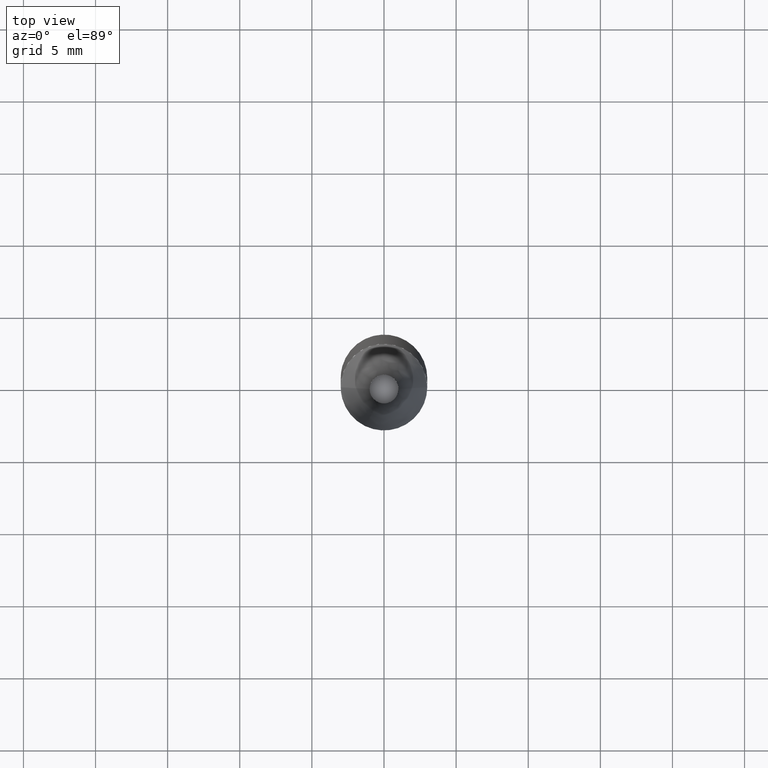
[diagram: clean part render]
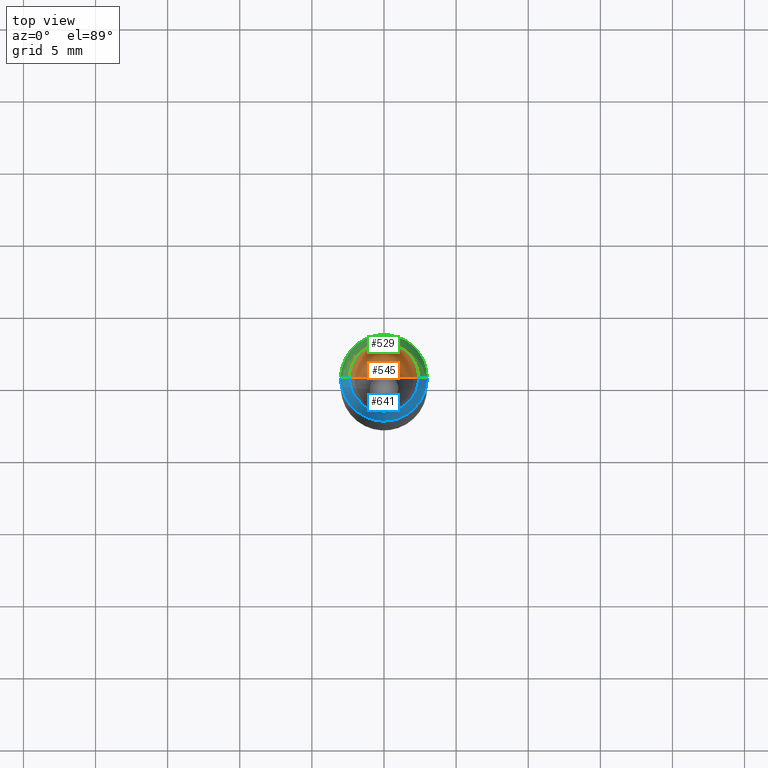
[diagram: same view with three faces highlighted in distinct colors, each labeled with its STEP entity id]
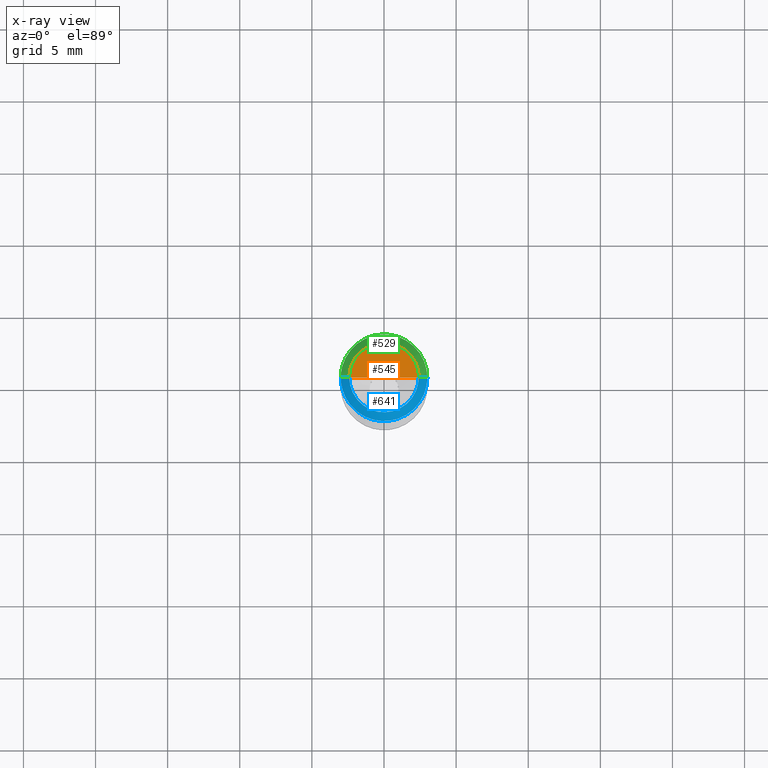
[diagram: x-ray of the same camera — body ghosted, the three highlighted faces saturated]
A machine part, top view with three faces highlighted in distinct colors.
The next image is the same camera in x-ray (body ghosted, the three faces saturated) — at least one of them is partly hidden behind the body in this view.
Their STEP definitions:

[orange] entity #545 — the highlighted face is a freeform B-spline surface patch.
#303=CARTESIAN_POINT('',(2.4,0.0,37.535));
#304=CARTESIAN_POINT('',(2.4,2.4,37.535));
#305=CARTESIAN_POINT('',(0.0,2.4,37.535));
#306=CARTESIAN_POINT('',(-2.4,2.4,37.535));
#307=CARTESIAN_POINT('',(-2.4,0.0,37.535));
#308=CARTESIAN_POINT('',(0.0,0.0,37.535));
#530=(
BOUNDED_SURFACE()
B_SPLINE_SURFACE(1,2,(
(#303,#304,#305,#306,#307),
(#308,#308,#308,#308,#308)
), .UNSPECIFIED.,.F.,.F.,.F.)
B_SPLINE_SURFACE_WITH_KNOTS((2,2),(3,2,3),(
0.0,1.0),(
0.0,0.5,1.0), .UNSPECIFIED.)
GEOMETRIC_REPRESENTATION_ITEM()
RATIONAL_B_SPLINE_SURFACE(((1.0,0.707106781187,1.0,0.707106781187,1.0),
(1.0,0.707106781187,1.0,0.707106781187,1.0)
))
REPRESENTATION_ITEM('')
SURFACE()
);
#531=(
BOUNDED_CURVE()
B_SPLINE_CURVE(1,(#308,#303),.UNSPECIFIED.,.F.,.F.)
B_SPLINE_CURVE_WITH_KNOTS((2,2),
(0.0,1.0),.UNSPECIFIED.)
CURVE()
GEOMETRIC_REPRESENTATION_ITEM()
RATIONAL_B_SPLINE_CURVE((1.0,1.0))
REPRESENTATION_ITEM('')
);
#532=(
BOUNDED_CURVE()
B_SPLINE_CURVE(2,(#303,#304,#305,#306,#307),.UNSPECIFIED.,.F.,.F.)
B_SPLINE_CURVE_WITH_KNOTS((3,2,3),
(0.0,0.5,1.0),.UNSPECIFIED.)
CURVE()
GEOMETRIC_REPRESENTATION_ITEM()
RATIONAL_B_SPLINE_CURVE((1.0,0.707106781187,1.0,0.707106781187,1.0))
REPRESENTATION_ITEM('')
);
#533=(
BOUNDED_CURVE()
B_SPLINE_CURVE(1,(#307,#308),.UNSPECIFIED.,.F.,.F.)
B_SPLINE_CURVE_WITH_KNOTS((2,2),
(0.0,1.0),.UNSPECIFIED.)
CURVE()
GEOMETRIC_REPRESENTATION_ITEM()
RATIONAL_B_SPLINE_CURVE((1.0,1.0))
REPRESENTATION_ITEM('')
);
#534=VERTEX_POINT('',#303);
#535=VERTEX_POINT('',#307);
#536=VERTEX_POINT('',#308);
#537=EDGE_CURVE('',#536,#534,#531,.T.);
#538=EDGE_CURVE('',#534,#535,#532,.T.);
#539=EDGE_CURVE('',#535,#536,#533,.T.);
#540=ORIENTED_EDGE('',*,*,#537,.T.);
#541=ORIENTED_EDGE('',*,*,#538,.T.);
#542=ORIENTED_EDGE('',*,*,#539,.T.);
#543=EDGE_LOOP('',(#540,#541,#542));
#544=FACE_OUTER_BOUND('',#543,.T.);
#545=ADVANCED_FACE('',(#544),#530,.T.);

[blue] entity #641 — the highlighted face is a freeform B-spline surface patch.
#298=CARTESIAN_POINT('',(3.0,0.0,36.935));
#302=CARTESIAN_POINT('',(-3.0,0.0,36.935));
#303=CARTESIAN_POINT('',(2.4,0.0,37.535));
#307=CARTESIAN_POINT('',(-2.4,0.0,37.535));
#315=CARTESIAN_POINT('',(-3.0,-3.0,36.935));
#316=CARTESIAN_POINT('',(0.0,-3.0,36.935));
#317=CARTESIAN_POINT('',(3.0,-3.0,36.935));
#318=CARTESIAN_POINT('',(-2.4,-2.4,37.535));
#319=CARTESIAN_POINT('',(0.0,-2.4,37.535));
#320=CARTESIAN_POINT('',(2.4,-2.4,37.535));
#622=(
BOUNDED_SURFACE()
B_SPLINE_SURFACE(1,2,(
(#302,#315,#316,#317,#298),
(#307,#318,#319,#320,#303)
), .UNSPECIFIED.,.F.,.F.,.F.)
B_SPLINE_SURFACE_WITH_KNOTS((2,2),(3,2,3),(
0.0,1.0),(
0.0,0.5,1.0), .UNSPECIFIED.)
GEOMETRIC_REPRESENTATION_ITEM()
RATIONAL_B_SPLINE_SURFACE(((1.0,0.707106781187,1.0,0.707106781187,1.0),
(1.0,0.707106781187,1.0,0.707106781187,1.0)
))
REPRESENTATION_ITEM('')
SURFACE()
);
#623=(
BOUNDED_CURVE()
B_SPLINE_CURVE(2,(#307,#318,#319,#320,#303),.UNSPECIFIED.,.F.,.F.)
B_SPLINE_CURVE_WITH_KNOTS((3,2,3),
(0.0,0.5,1.0),.UNSPECIFIED.)
CURVE()
GEOMETRIC_REPRESENTATION_ITEM()
RATIONAL_B_SPLINE_CURVE((1.0,0.707106781187,1.0,0.707106781187,1.0))
REPRESENTATION_ITEM('')
);
#624=(
BOUNDED_CURVE()
B_SPLINE_CURVE(1,(#303,#298),.UNSPECIFIED.,.F.,.F.)
B_SPLINE_CURVE_WITH_KNOTS((2,2),
(0.0,1.0),.UNSPECIFIED.)
CURVE()
GEOMETRIC_REPRESENTATION_ITEM()
RATIONAL_B_SPLINE_CURVE((1.0,1.0))
REPRESENTATION_ITEM('')
);
#625=(
BOUNDED_CURVE()
B_SPLINE_CURVE(2,(#298,#317,#316,#315,#302),.UNSPECIFIED.,.F.,.F.)
B_SPLINE_CURVE_WITH_KNOTS((3,2,3),
(0.0,0.5,1.0),.UNSPECIFIED.)
CURVE()
GEOMETRIC_REPRESENTATION_ITEM()
RATIONAL_B_SPLINE_CURVE((1.0,0.707106781187,1.0,0.707106781187,1.0))
REPRESENTATION_ITEM('')
);
#626=(
BOUNDED_CURVE()
B_SPLINE_CURVE(1,(#302,#307),.UNSPECIFIED.,.F.,.F.)
B_SPLINE_CURVE_WITH_KNOTS((2,2),
(0.0,1.0),.UNSPECIFIED.)
CURVE()
GEOMETRIC_REPRESENTATION_ITEM()
RATIONAL_B_SPLINE_CURVE((1.0,1.0))
REPRESENTATION_ITEM('')
);
#627=VERTEX_POINT('',#298);
#628=VERTEX_POINT('',#302);
#629=VERTEX_POINT('',#303);
#630=VERTEX_POINT('',#307);
#631=EDGE_CURVE('',#630,#629,#623,.T.);
#632=EDGE_CURVE('',#629,#627,#624,.T.);
#633=EDGE_CURVE('',#627,#628,#625,.T.);
#634=EDGE_CURVE('',#628,#630,#626,.T.);
#635=ORIENTED_EDGE('',*,*,#631,.T.);
#636=ORIENTED_EDGE('',*,*,#632,.T.);
#637=ORIENTED_EDGE('',*,*,#633,.T.);
#638=ORIENTED_EDGE('',*,*,#634,.T.);
#639=EDGE_LOOP('',(#635,#636,#637,#638));
#640=FACE_OUTER_BOUND('',#639,.T.);
#641=ADVANCED_FACE('',(#640),#622,.T.);

[green] entity #529 — the highlighted face is a freeform B-spline surface patch.
#298=CARTESIAN_POINT('',(3.0,0.0,36.935));
#299=CARTESIAN_POINT('',(3.0,3.0,36.935));
#300=CARTESIAN_POINT('',(0.0,3.0,36.935));
#301=CARTESIAN_POINT('',(-3.0,3.0,36.935));
#302=CARTESIAN_POINT('',(-3.0,0.0,36.935));
#303=CARTESIAN_POINT('',(2.4,0.0,37.535));
#304=CARTESIAN_POINT('',(2.4,2.4,37.535));
#305=CARTESIAN_POINT('',(0.0,2.4,37.535));
#306=CARTESIAN_POINT('',(-2.4,2.4,37.535));
#307=CARTESIAN_POINT('',(-2.4,0.0,37.535));
#510=(
BOUNDED_SURFACE()
B_SPLINE_SURFACE(1,2,(
(#298,#299,#300,#301,#302),
(#303,#304,#305,#306,#307)
), .UNSPECIFIED.,.F.,.F.,.F.)
B_SPLINE_SURFACE_WITH_KNOTS((2,2),(3,2,3),(
0.0,1.0),(
0.0,0.5,1.0), .UNSPECIFIED.)
GEOMETRIC_REPRESENTATION_ITEM()
RATIONAL_B_SPLINE_SURFACE(((1.0,0.707106781187,1.0,0.707106781187,1.0),
(1.0,0.707106781187,1.0,0.707106781187,1.0)
))
REPRESENTATION_ITEM('')
SURFACE()
);
#511=(
BOUNDED_CURVE()
B_SPLINE_CURVE(1,(#303,#298),.UNSPECIFIED.,.F.,.F.)
B_SPLINE_CURVE_WITH_KNOTS((2,2),
(0.0,1.0),.UNSPECIFIED.)
CURVE()
GEOMETRIC_REPRESENTATION_ITEM()
RATIONAL_B_SPLINE_CURVE((1.0,1.0))
REPRESENTATION_ITEM('')
);
#512=(
BOUNDED_CURVE()
B_SPLINE_CURVE(2,(#298,#299,#300,#301,#302),.UNSPECIFIED.,.F.,.F.)
B_SPLINE_CURVE_WITH_KNOTS((3,2,3),
(0.0,0.5,1.0),.UNSPECIFIED.)
CURVE()
GEOMETRIC_REPRESENTATION_ITEM()
RATIONAL_B_SPLINE_CURVE((1.0,0.707106781187,1.0,0.707106781187,1.0))
REPRESENTATION_ITEM('')
);
#513=(
BOUNDED_CURVE()
B_SPLINE_CURVE(1,(#302,#307),.UNSPECIFIED.,.F.,.F.)
B_SPLINE_CURVE_WITH_KNOTS((2,2),
(0.0,1.0),.UNSPECIFIED.)
CURVE()
GEOMETRIC_REPRESENTATION_ITEM()
RATIONAL_B_SPLINE_CURVE((1.0,1.0))
REPRESENTATION_ITEM('')
);
#514=(
BOUNDED_CURVE()
B_SPLINE_CURVE(2,(#307,#306,#305,#304,#303),.UNSPECIFIED.,.F.,.F.)
B_SPLINE_CURVE_WITH_KNOTS((3,2,3),
(0.0,0.5,1.0),.UNSPECIFIED.)
CURVE()
GEOMETRIC_REPRESENTATION_ITEM()
RATIONAL_B_SPLINE_CURVE((1.0,0.707106781187,1.0,0.707106781187,1.0))
REPRESENTATION_ITEM('')
);
#515=VERTEX_POINT('',#298);
#516=VERTEX_POINT('',#302);
#517=VERTEX_POINT('',#303);
#518=VERTEX_POINT('',#307);
#519=EDGE_CURVE('',#517,#515,#511,.T.);
#520=EDGE_CURVE('',#515,#516,#512,.T.);
#521=EDGE_CURVE('',#516,#518,#513,.T.);
#522=EDGE_CURVE('',#518,#517,#514,.T.);
#523=ORIENTED_EDGE('',*,*,#519,.T.);
#524=ORIENTED_EDGE('',*,*,#520,.T.);
#525=ORIENTED_EDGE('',*,*,#521,.T.);
#526=ORIENTED_EDGE('',*,*,#522,.T.);
#527=EDGE_LOOP('',(#523,#524,#525,#526));
#528=FACE_OUTER_BOUND('',#527,.T.);
#529=ADVANCED_FACE('',(#528),#510,.T.);